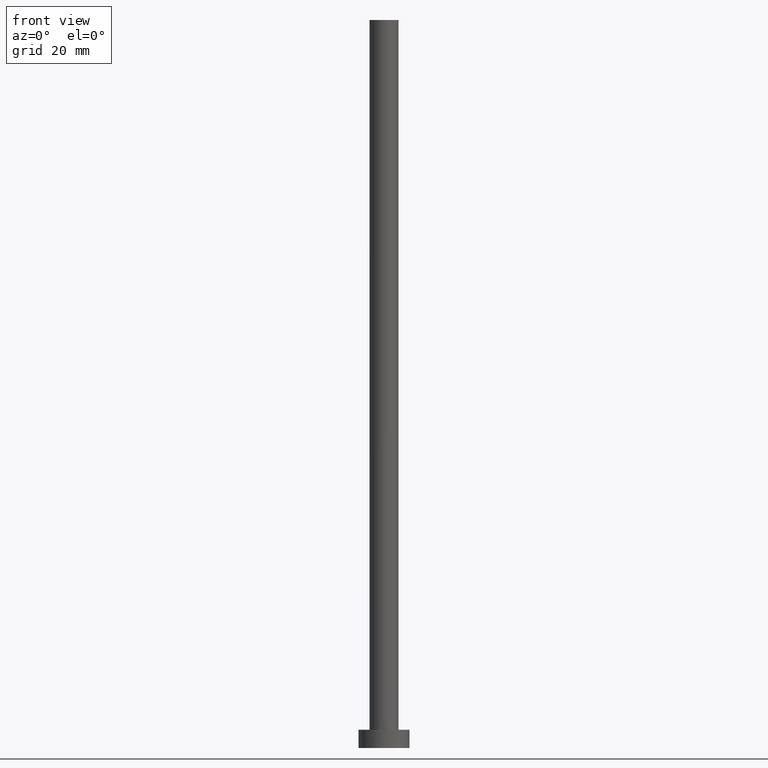
[diagram: clean part render]
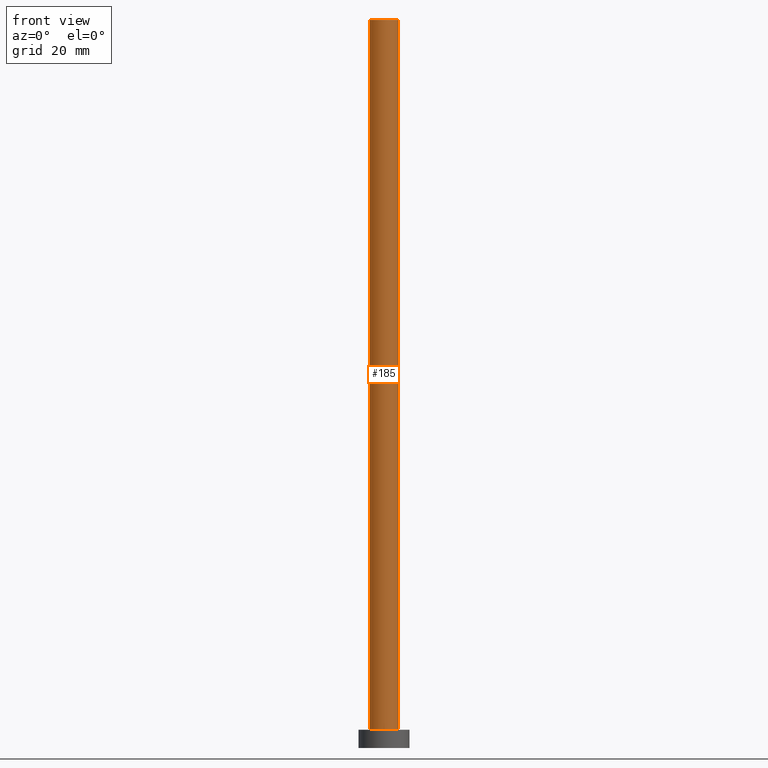
[diagram: same view with one face highlighted and labeled with its STEP entity id]
A machine part, front view. The second image highlights one B-rep face of the part: STEP entity #185.
In plain terms, the highlighted cylindrical surface (edge-blend (fillet) strip) has radius 4 mm, axis along (-0, -0, -1).
Its self-contained STEP definition (entity closure, byte-faithful):
#3 = AXIS2_PLACEMENT_3D ( 'NONE', #228, #226, #8 ) ;
#8 = DIRECTION ( 'NONE',  ( 1.000000000000000000, 0.000000000000000000, 0.000000000000000000 ) ) ;
#9 = AXIS2_PLACEMENT_3D ( 'NONE', #112, #13, #94 ) ;
#13 = DIRECTION ( 'NONE',  ( -0.000000000000000000, -0.000000000000000000, -1.000000000000000000 ) ) ;
#28 = VERTEX_POINT ( 'NONE', #153 ) ;
#39 = VECTOR ( 'NONE', #136, 1000.000000000000000 ) ;
#49 = FACE_OUTER_BOUND ( 'NONE', #168, .T. ) ;
#72 = CARTESIAN_POINT ( 'NONE',  ( -4.000000000000000000, 0.000000000000000000, 200.0000000000000000 ) ) ;
#73 = CARTESIAN_POINT ( 'NONE',  ( 4.000000000000000000, 4.898587196589412829E-16, 200.0000000000000000 ) ) ;
#82 = EDGE_CURVE ( 'NONE', #128, #28, #95, .T. ) ;
#85 = ORIENTED_EDGE ( 'NONE', *, *, #144, .F. ) ;
#94 = DIRECTION ( 'NONE',  ( -1.000000000000000000, 0.000000000000000000, 0.000000000000000000 ) ) ;
#95 = LINE ( 'NONE', #174, #158 ) ;
#96 = CIRCLE ( 'NONE', #3, 4.000000000000000000 ) ;
#112 = CARTESIAN_POINT ( 'NONE',  ( 0.000000000000000000, 0.000000000000000000, 200.0000000000000000 ) ) ;
#128 = VERTEX_POINT ( 'NONE', #72 ) ;
#130 = ORIENTED_EDGE ( 'NONE', *, *, #147, .F. ) ;
#136 = DIRECTION ( 'NONE',  ( -0.000000000000000000, -0.000000000000000000, -1.000000000000000000 ) ) ;
#138 = DIRECTION ( 'NONE',  ( 0.000000000000000000, 0.000000000000000000, 1.000000000000000000 ) ) ;
#139 = AXIS2_PLACEMENT_3D ( 'NONE', #216, #138, #176 ) ;
#144 = EDGE_CURVE ( 'NONE', #128, #202, #96, .T. ) ;
#147 = EDGE_CURVE ( 'NONE', #202, #164, #249, .T. ) ;
#151 = CARTESIAN_POINT ( 'NONE',  ( 4.000000000000000000, 4.898587196589412829E-16, 5.000000000000000000 ) ) ;
#153 = CARTESIAN_POINT ( 'NONE',  ( -4.000000000000000000, 0.000000000000000000, 5.000000000000000000 ) ) ;
#158 = VECTOR ( 'NONE', #211, 1000.000000000000000 ) ;
#163 = ORIENTED_EDGE ( 'NONE', *, *, #82, .T. ) ;
#164 = VERTEX_POINT ( 'NONE', #151 ) ;
#168 = EDGE_LOOP ( 'NONE', ( #130, #85, #163, #204 ) ) ;
#174 = CARTESIAN_POINT ( 'NONE',  ( -4.000000000000000000, 0.000000000000000000, 200.0000000000000000 ) ) ;
#176 = DIRECTION ( 'NONE',  ( 1.000000000000000000, 0.000000000000000000, 0.000000000000000000 ) ) ;
#185 = ADVANCED_FACE ( 'NONE', ( #49 ), #190, .T. ) ;
#190 = CYLINDRICAL_SURFACE ( 'NONE', #9, 4.000000000000000000 ) ;
#202 = VERTEX_POINT ( 'NONE', #73 ) ;
#204 = ORIENTED_EDGE ( 'NONE', *, *, #255, .T. ) ;
#211 = DIRECTION ( 'NONE',  ( -0.000000000000000000, -0.000000000000000000, -1.000000000000000000 ) ) ;
#212 = CIRCLE ( 'NONE', #139, 4.000000000000000000 ) ;
#216 = CARTESIAN_POINT ( 'NONE',  ( 0.000000000000000000, 0.000000000000000000, 5.000000000000000000 ) ) ;
#226 = DIRECTION ( 'NONE',  ( 0.000000000000000000, 0.000000000000000000, 1.000000000000000000 ) ) ;
#228 = CARTESIAN_POINT ( 'NONE',  ( 0.000000000000000000, 0.000000000000000000, 200.0000000000000000 ) ) ;
#230 = CARTESIAN_POINT ( 'NONE',  ( 4.000000000000000000, 4.898587196589412829E-16, 200.0000000000000000 ) ) ;
#249 = LINE ( 'NONE', #230, #39 ) ;
#255 = EDGE_CURVE ( 'NONE', #28, #164, #212, .T. ) ;